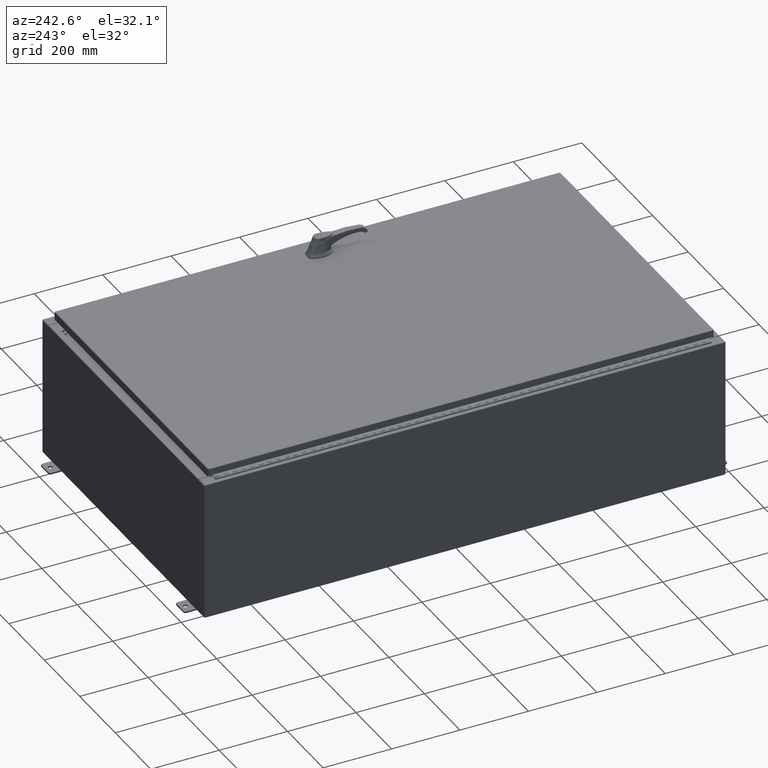
[diagram: clean part render]
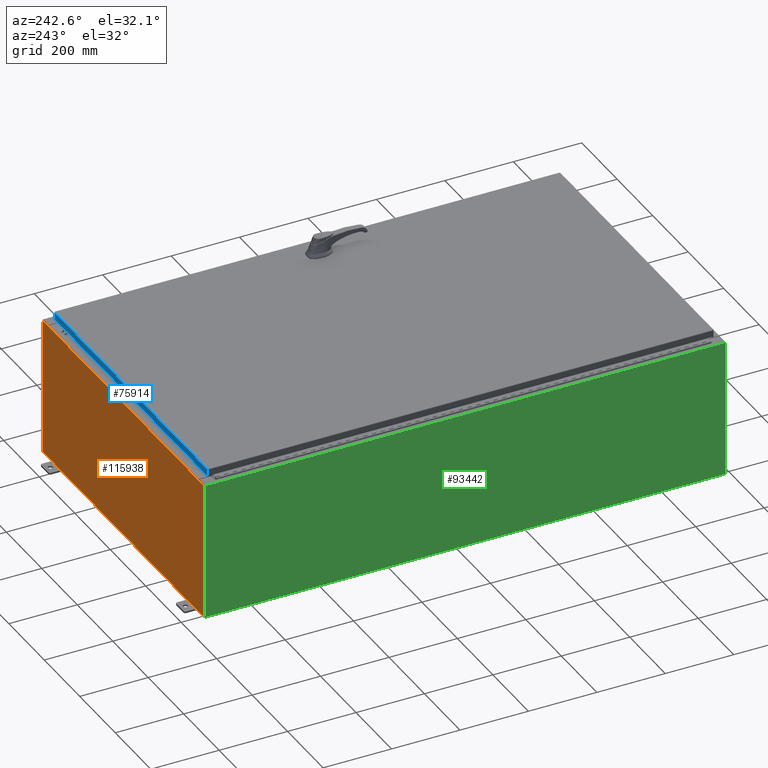
[diagram: same view with three faces highlighted in distinct colors, each labeled with its STEP entity id]
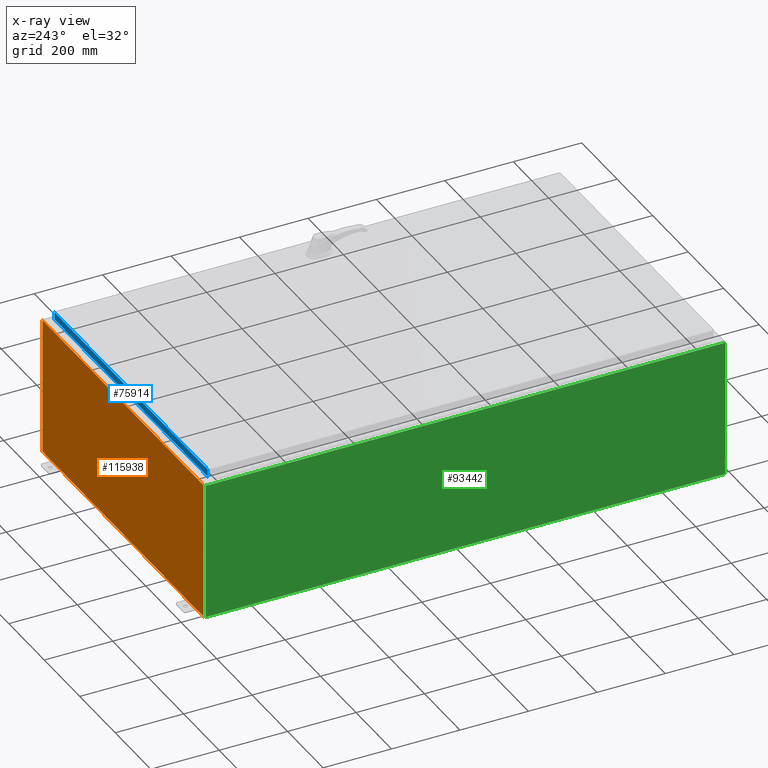
[diagram: x-ray of the same camera — body ghosted, the three highlighted faces saturated]
A machine part, auxiliary view with three faces highlighted in distinct colors.
The next image is the same camera in x-ray (body ghosted, the three faces saturated) — at least one of them is partly hidden behind the body in this view.
Their STEP definitions:

[orange] entity #115938 — the highlighted planar face has unit normal (0, -1, 0).
#211 = LINE ( 'NONE', #129526, #140358 ) ;
#833 = ORIENTED_EDGE ( 'NONE', *, *, #69115, .T. ) ;
#890 = CARTESIAN_POINT ( 'NONE',  ( -16.67455000000000000, -0.0000000000000000000, 0.0000000000000000000 ) ) ;
#2620 = DIRECTION ( 'NONE',  ( 0.0000000000000000000, 0.0000000000000000000, -1.000000000000000000 ) ) ;
#2703 = CARTESIAN_POINT ( 'NONE',  ( -16.63720000000000400, -0.0000000000000000000, 7.874950000000001900 ) ) ;
#2925 = ORIENTED_EDGE ( 'NONE', *, *, #35297, .T. ) ;
#2933 = ORIENTED_EDGE ( 'NONE', *, *, #6963, .T. ) ;
#4598 = CIRCLE ( 'NONE', #44981, 0.01867499999999949400 ) ;
#5941 = VECTOR ( 'NONE', #2620, 39.37007874015748100 ) ;
#6963 = EDGE_CURVE ( 'NONE', #8186, #115504, #70796, .T. ) ;
#7764 = DIRECTION ( 'NONE',  ( 1.000000000000000000, 0.0000000000000000000, -6.096072018129154100E-017 ) ) ;
#8186 = VERTEX_POINT ( 'NONE', #90753 ) ;
#10362 = CARTESIAN_POINT ( 'NONE',  ( -16.65587500000000200, 0.0000000000000000000, 7.874950000000001900 ) ) ;
#10592 = LINE ( 'NONE', #95210, #69365 ) ;
#16722 = ORIENTED_EDGE ( 'NONE', *, *, #120400, .F. ) ;
#16828 = FACE_OUTER_BOUND ( 'NONE', #53896, .T. ) ;
#18694 = VERTEX_POINT ( 'NONE', #115723 ) ;
#21501 = DIRECTION ( 'NONE',  ( 0.0000000000000000000, 0.0000000000000000000, -1.000000000000000000 ) ) ;
#24253 = EDGE_CURVE ( 'NONE', #143245, #36862, #126744, .T. ) ;
#26212 = EDGE_CURVE ( 'NONE', #30209, #8186, #211, .T. ) ;
#28987 = DIRECTION ( 'NONE',  ( -8.681145560800387200E-014, 0.0000000000000000000, -1.000000000000000000 ) ) ;
#30209 = VERTEX_POINT ( 'NONE', #58281 ) ;
#30899 = CARTESIAN_POINT ( 'NONE',  ( 16.63720000000000400, 0.0000000000000000000, 0.0000000000000000000 ) ) ;
#33060 = CARTESIAN_POINT ( 'NONE',  ( -17.92530000000000000, 0.0000000000000000000, 7.925300000000001800 ) ) ;
#34006 = EDGE_CURVE ( 'NONE', #143245, #142243, #38803, .T. ) ;
#35297 = EDGE_CURVE ( 'NONE', #86009, #30209, #85264, .T. ) ;
#36556 = AXIS2_PLACEMENT_3D ( 'NONE', #81121, #48216, #125633 ) ;
#36862 = VERTEX_POINT ( 'NONE', #136852 ) ;
#37151 = PLANE ( 'NONE',  #36556 ) ;
#38803 = LINE ( 'NONE', #135076, #5941 ) ;
#40053 = VECTOR ( 'NONE', #122653, 39.37007874015748100 ) ;
#40643 = CARTESIAN_POINT ( 'NONE',  ( -17.92530000000000000, 0.0000000000000000000, 7.925300000000001800 ) ) ;
#40696 = ORIENTED_EDGE ( 'NONE', *, *, #34006, .F. ) ;
#41893 = CARTESIAN_POINT ( 'NONE',  ( 16.65587500000000200, 0.0000000000000000000, 7.874950000000001900 ) ) ;
#44524 = DIRECTION ( 'NONE',  ( 1.000000000000000000, 0.0000000000000000000, 0.0000000000000000000 ) ) ;
#44981 = AXIS2_PLACEMENT_3D ( 'NONE', #10362, #87716, #21501 ) ;
#48216 = DIRECTION ( 'NONE',  ( 0.0000000000000000000, -1.000000000000000000, 0.0000000000000000000 ) ) ;
#50927 = CARTESIAN_POINT ( 'NONE',  ( 17.92530000000000000, 0.0000000000000000000, 7.925300000000000000 ) ) ;
#52342 = LINE ( 'NONE', #30899, #78283 ) ;
#52479 = DIRECTION ( 'NONE',  ( -0.0000000000000000000, -0.0000000000000000000, 1.000000000000000000 ) ) ;
#52613 = CARTESIAN_POINT ( 'NONE',  ( -16.63720000000000400, -2.356218894535426900E-015, 7.912300000000008100 ) ) ;
#52960 = DIRECTION ( 'NONE',  ( 0.0000000000000000000, 0.0000000000000000000, -1.000000000000000000 ) ) ;
#53896 = EDGE_LOOP ( 'NONE', ( #77192, #106064, #40696, #123745, #16722, #85447, #74233, #833, #2925, #95128, #2933, #100152 ) ) ;
#53989 = VERTEX_POINT ( 'NONE', #115898 ) ;
#58281 = CARTESIAN_POINT ( 'NONE',  ( 17.92530000000000000, 0.0000000000000000000, -7.925299999999997300 ) ) ;
#58729 = EDGE_CURVE ( 'NONE', #53989, #140678, #10592, .T. ) ;
#60726 = EDGE_CURVE ( 'NONE', #115504, #90720, #65761, .T. ) ;
#61174 = CARTESIAN_POINT ( 'NONE',  ( 16.67455000000000000, 0.0000000000000000000, 7.874950000000001900 ) ) ;
#65761 = LINE ( 'NONE', #140258, #121173 ) ;
#67298 = VECTOR ( 'NONE', #52479, 39.37007874015748100 ) ;
#68404 = CARTESIAN_POINT ( 'NONE',  ( 16.63720000000000400, 0.0000000000000000000, 7.874950000000001900 ) ) ;
#69115 = EDGE_CURVE ( 'NONE', #53989, #86009, #98928, .T. ) ;
#69365 = VECTOR ( 'NONE', #28987, 39.37007874015748100 ) ;
#70796 = LINE ( 'NONE', #141066, #67298 ) ;
#71075 = CARTESIAN_POINT ( 'NONE',  ( -16.67455000000000000, 0.0000000000000000000, 7.925300000000001800 ) ) ;
#72194 = CIRCLE ( 'NONE', #129323, 0.01867499999999949400 ) ;
#72959 = VECTOR ( 'NONE', #110407, 39.37007874015748100 ) ;
#74233 = ORIENTED_EDGE ( 'NONE', *, *, #58729, .F. ) ;
#77192 = ORIENTED_EDGE ( 'NONE', *, *, #100451, .F. ) ;
#78283 = VECTOR ( 'NONE', #97160, 39.37007874015748100 ) ;
#81121 = CARTESIAN_POINT ( 'NONE',  ( 0.0000000000000000000, 0.0000000000000000000, 0.0000000000000000000 ) ) ;
#83226 = DIRECTION ( 'NONE',  ( 0.0000000000000000000, 0.0000000000000000000, -1.000000000000000000 ) ) ;
#85264 = LINE ( 'NONE', #127288, #140701 ) ;
#85447 = ORIENTED_EDGE ( 'NONE', *, *, #131275, .F. ) ;
#85651 = VERTEX_POINT ( 'NONE', #68404 ) ;
#86009 = VERTEX_POINT ( 'NONE', #50927 ) ;
#86907 = VECTOR ( 'NONE', #44524, 39.37007874015748100 ) ;
#87716 = DIRECTION ( 'NONE',  ( -0.0000000000000000000, 1.000000000000000000, -0.0000000000000000000 ) ) ;
#90720 = VERTEX_POINT ( 'NONE', #71075 ) ;
#90753 = CARTESIAN_POINT ( 'NONE',  ( -17.92530000000000000, 0.0000000000000000000, -7.925299999999997300 ) ) ;
#95128 = ORIENTED_EDGE ( 'NONE', *, *, #26212, .T. ) ;
#95210 = CARTESIAN_POINT ( 'NONE',  ( 16.67454999999931800, -0.0000000000000000000, -1.447541957108381700E-012 ) ) ;
#97160 = DIRECTION ( 'NONE',  ( 0.0000000000000000000, 0.0000000000000000000, 1.000000000000000000 ) ) ;
#98928 = LINE ( 'NONE', #33060, #72959 ) ;
#100152 = ORIENTED_EDGE ( 'NONE', *, *, #60726, .T. ) ;
#100451 = EDGE_CURVE ( 'NONE', #18694, #90720, #128315, .T. ) ;
#105393 = EDGE_CURVE ( 'NONE', #142243, #18694, #4598, .T. ) ;
#106064 = ORIENTED_EDGE ( 'NONE', *, *, #105393, .F. ) ;
#110407 = DIRECTION ( 'NONE',  ( 1.000000000000000000, 0.0000000000000000000, -6.096072018129154100E-017 ) ) ;
#115504 = VERTEX_POINT ( 'NONE', #40643 ) ;
#115723 = CARTESIAN_POINT ( 'NONE',  ( -16.67455000000000000, 0.0000000000000000000, 7.874950000000001900 ) ) ;
#115898 = CARTESIAN_POINT ( 'NONE',  ( 16.67455000000000700, 0.0000000000000000000, 7.925300000000000000 ) ) ;
#115938 = ADVANCED_FACE ( 'NONE', ( #16828 ), #37151, .F. ) ;
#119207 = DIRECTION ( 'NONE',  ( -0.0000000000000000000, 1.000000000000000000, -0.0000000000000000000 ) ) ;
#120400 = EDGE_CURVE ( 'NONE', #85651, #36862, #52342, .T. ) ;
#121173 = VECTOR ( 'NONE', #7764, 39.37007874015748100 ) ;
#121871 = CARTESIAN_POINT ( 'NONE',  ( -16.63720000000000400, -2.356218894535426900E-015, 7.912300000000008100 ) ) ;
#122653 = DIRECTION ( 'NONE',  ( 0.0000000000000000000, 0.0000000000000000000, 1.000000000000000000 ) ) ;
#123745 = ORIENTED_EDGE ( 'NONE', *, *, #24253, .T. ) ;
#125633 = DIRECTION ( 'NONE',  ( 0.0000000000000000000, -0.0000000000000000000, -1.000000000000000000 ) ) ;
#126744 = LINE ( 'NONE', #121871, #86907 ) ;
#127288 = CARTESIAN_POINT ( 'NONE',  ( 17.92530000000000000, 0.0000000000000000000, 7.925300000000000000 ) ) ;
#128315 = LINE ( 'NONE', #890, #40053 ) ;
#129039 = DIRECTION ( 'NONE',  ( -1.000000000000000000, -0.0000000000000000000, -0.0000000000000000000 ) ) ;
#129323 = AXIS2_PLACEMENT_3D ( 'NONE', #41893, #119207, #52960 ) ;
#129526 = CARTESIAN_POINT ( 'NONE',  ( -17.92530000000000000, 0.0000000000000000000, -7.925299999999997300 ) ) ;
#131275 = EDGE_CURVE ( 'NONE', #140678, #85651, #72194, .T. ) ;
#135076 = CARTESIAN_POINT ( 'NONE',  ( -16.63720000000000400, -0.0000000000000000000, 0.0000000000000000000 ) ) ;
#136852 = CARTESIAN_POINT ( 'NONE',  ( 16.63720000000000400, 0.0000000000000000000, 7.912300000000001900 ) ) ;
#140258 = CARTESIAN_POINT ( 'NONE',  ( -17.92530000000000000, 0.0000000000000000000, 7.925300000000001800 ) ) ;
#140358 = VECTOR ( 'NONE', #129039, 39.37007874015748100 ) ;
#140678 = VERTEX_POINT ( 'NONE', #61174 ) ;
#140701 = VECTOR ( 'NONE', #83226, 39.37007874015748100 ) ;
#141066 = CARTESIAN_POINT ( 'NONE',  ( -17.92530000000000000, 0.0000000000000000000, 7.925300000000001800 ) ) ;
#142243 = VERTEX_POINT ( 'NONE', #2703 ) ;
#143245 = VERTEX_POINT ( 'NONE', #52613 ) ;

[blue] entity #75914 — the highlighted planar face has unit normal (0, -1, -0).
#4820 = CARTESIAN_POINT ( 'NONE',  ( -17.07799999999999600, 29.09400000000000500, -0.9377000000000040900 ) ) ;
#5552 = CARTESIAN_POINT ( 'NONE',  ( -17.07799999999999600, 29.09400000000000100, -0.08769999999999550400 ) ) ;
#7017 = CARTESIAN_POINT ( 'NONE',  ( 16.98915786437627100, 29.09400000000000100, 1.476172642287442400E-013 ) ) ;
#12519 = LINE ( 'NONE', #18477, #71297 ) ;
#14967 = EDGE_CURVE ( 'NONE', #25350, #93203, #12519, .T. ) ;
#17762 = LINE ( 'NONE', #5552, #131960 ) ;
#18477 = CARTESIAN_POINT ( 'NONE',  ( -16.98915786437626400, 29.09400000000000100, -0.07469999999999962800 ) ) ;
#20233 = ORIENTED_EDGE ( 'NONE', *, *, #14967, .F. ) ;
#23982 = EDGE_LOOP ( 'NONE', ( #24286, #110985, #126868, #20233 ) ) ;
#24286 = ORIENTED_EDGE ( 'NONE', *, *, #96216, .F. ) ;
#25350 = VERTEX_POINT ( 'NONE', #114207 ) ;
#35691 = EDGE_CURVE ( 'NONE', #93203, #121929, #112847, .T. ) ;
#38213 = AXIS2_PLACEMENT_3D ( 'NONE', #109224, #43002, #120346 ) ;
#38961 = CARTESIAN_POINT ( 'NONE',  ( 16.98915786437627100, 29.09400000000000100, -0.08769999999999550400 ) ) ;
#40755 = VECTOR ( 'NONE', #127903, 39.37007874015748100 ) ;
#41575 = PLANE ( 'NONE',  #38213 ) ;
#43002 = DIRECTION ( 'NONE',  ( 6.278948793603126400E-031, -1.000000000000000000, -5.064839849203707700E-015 ) ) ;
#47765 = FACE_OUTER_BOUND ( 'NONE', #23982, .T. ) ;
#70969 = DIRECTION ( 'NONE',  ( 1.000000000000000000, 8.758115402030108600E-047, 1.239713195391617400E-016 ) ) ;
#71297 = VECTOR ( 'NONE', #84693, 39.37007874015748100 ) ;
#75914 = ADVANCED_FACE ( 'NONE', ( #47765 ), #41575, .F. ) ;
#82849 = DIRECTION ( 'NONE',  ( -1.000000000000000000, -6.278948793603127300E-031, -3.245122892416730700E-045 ) ) ;
#84693 = DIRECTION ( 'NONE',  ( -0.0000000000000000000, 5.064839849203707700E-015, -1.000000000000000000 ) ) ;
#86094 = CARTESIAN_POINT ( 'NONE',  ( -16.98915786437626400, 29.09400000000000500, -0.9377000000000040900 ) ) ;
#86931 = VECTOR ( 'NONE', #70969, 39.37007874015748100 ) ;
#92506 = EDGE_CURVE ( 'NONE', #94025, #121929, #99562, .T. ) ;
#93203 = VERTEX_POINT ( 'NONE', #86094 ) ;
#94025 = VERTEX_POINT ( 'NONE', #38961 ) ;
#96216 = EDGE_CURVE ( 'NONE', #94025, #25350, #17762, .T. ) ;
#99562 = LINE ( 'NONE', #7017, #40755 ) ;
#109224 = CARTESIAN_POINT ( 'NONE',  ( -1.826797362010893600E-029, 29.09400000000000100, 1.476172642287442400E-013 ) ) ;
#110881 = CARTESIAN_POINT ( 'NONE',  ( 16.98915786437627100, 29.09400000000000500, -0.9376999999999997600 ) ) ;
#110985 = ORIENTED_EDGE ( 'NONE', *, *, #92506, .T. ) ;
#112847 = LINE ( 'NONE', #4820, #86931 ) ;
#114207 = CARTESIAN_POINT ( 'NONE',  ( -16.98915786437626400, 29.09400000000000100, -0.08769999999999550400 ) ) ;
#120346 = DIRECTION ( 'NONE',  ( 0.0000000000000000000, 5.064839849203707700E-015, -1.000000000000000000 ) ) ;
#121929 = VERTEX_POINT ( 'NONE', #110881 ) ;
#126868 = ORIENTED_EDGE ( 'NONE', *, *, #35691, .F. ) ;
#127903 = DIRECTION ( 'NONE',  ( 0.0000000000000000000, 5.064839849203707700E-015, -1.000000000000000000 ) ) ;
#131960 = VECTOR ( 'NONE', #82849, 39.37007874015748100 ) ;

[green] entity #93442 — the highlighted planar face has unit normal (1, 0, 0).
#993 = DIRECTION ( 'NONE',  ( 1.000000000000000000, 0.0000000000000000000, 3.430827668758847900E-015 ) ) ;
#8597 = DIRECTION ( 'NONE',  ( 3.430827668758847900E-015, 0.0000000000000000000, -1.000000000000000000 ) ) ;
#9891 = ORIENTED_EDGE ( 'NONE', *, *, #132355, .T. ) ;
#10676 = DIRECTION ( 'NONE',  ( -0.0000000000000000000, 1.000000000000000000, -0.0000000000000000000 ) ) ;
#10845 = CARTESIAN_POINT ( 'NONE',  ( -18.00000000000006000, -29.92530000000001100, 15.83759999999999700 ) ) ;
#14957 = VECTOR ( 'NONE', #20717, 39.37007874015748100 ) ;
#16331 = FACE_OUTER_BOUND ( 'NONE', #71048, .T. ) ;
#20717 = DIRECTION ( 'NONE',  ( -3.430827668758847900E-015, 0.0000000000000000000, 1.000000000000000000 ) ) ;
#25596 = EDGE_CURVE ( 'NONE', #76703, #29277, #107561, .T. ) ;
#29277 = VERTEX_POINT ( 'NONE', #107962 ) ;
#32913 = CARTESIAN_POINT ( 'NONE',  ( -18.00000000000000400, 29.92529999999998900, 0.01299999999999984700 ) ) ;
#39901 = VERTEX_POINT ( 'NONE', #98765 ) ;
#55060 = VECTOR ( 'NONE', #8597, 39.37007874015748100 ) ;
#56230 = ORIENTED_EDGE ( 'NONE', *, *, #114574, .T. ) ;
#62487 = LINE ( 'NONE', #119931, #88503 ) ;
#63644 = CARTESIAN_POINT ( 'NONE',  ( -18.00000000000000400, 29.92529999999998900, -6.201571169367084500E-014 ) ) ;
#67100 = CARTESIAN_POINT ( 'NONE',  ( -18.00000000000000400, 0.0000000000000000000, -6.201571169367084500E-014 ) ) ;
#68273 = AXIS2_PLACEMENT_3D ( 'NONE', #67100, #993, #78267 ) ;
#71048 = EDGE_LOOP ( 'NONE', ( #142699, #56230, #84186, #9891 ) ) ;
#74644 = VECTOR ( 'NONE', #10676, 39.37007874015748100 ) ;
#75930 = DIRECTION ( 'NONE',  ( 0.0000000000000000000, 1.000000000000000000, 0.0000000000000000000 ) ) ;
#76703 = VERTEX_POINT ( 'NONE', #128296 ) ;
#78267 = DIRECTION ( 'NONE',  ( 3.430827668758847900E-015, 0.0000000000000000000, -1.000000000000000000 ) ) ;
#83644 = EDGE_CURVE ( 'NONE', #127703, #39901, #62487, .T. ) ;
#84186 = ORIENTED_EDGE ( 'NONE', *, *, #25596, .F. ) ;
#86946 = CARTESIAN_POINT ( 'NONE',  ( -18.00000000000000400, -29.92530000000001100, -6.201571169367084500E-014 ) ) ;
#88503 = VECTOR ( 'NONE', #75930, 39.37007874015748100 ) ;
#93442 = ADVANCED_FACE ( 'NONE', ( #16331 ), #133438, .F. ) ;
#98765 = CARTESIAN_POINT ( 'NONE',  ( -18.00000000000005700, 29.92529999999998900, 15.83759999999999700 ) ) ;
#99701 = LINE ( 'NONE', #86946, #14957 ) ;
#107561 = LINE ( 'NONE', #32913, #74644 ) ;
#107962 = CARTESIAN_POINT ( 'NONE',  ( -18.00000000000000400, 29.92529999999998600, 0.01299999999999984800 ) ) ;
#113930 = LINE ( 'NONE', #63644, #55060 ) ;
#114574 = EDGE_CURVE ( 'NONE', #39901, #29277, #113930, .T. ) ;
#119931 = CARTESIAN_POINT ( 'NONE',  ( -18.00000000000006000, -29.92530000000001800, 15.83759999999999700 ) ) ;
#127703 = VERTEX_POINT ( 'NONE', #10845 ) ;
#128296 = CARTESIAN_POINT ( 'NONE',  ( -18.00000000000000400, -29.92530000000001100, 0.01299999999999984700 ) ) ;
#132355 = EDGE_CURVE ( 'NONE', #76703, #127703, #99701, .T. ) ;
#133438 = PLANE ( 'NONE',  #68273 ) ;
#142699 = ORIENTED_EDGE ( 'NONE', *, *, #83644, .T. ) ;